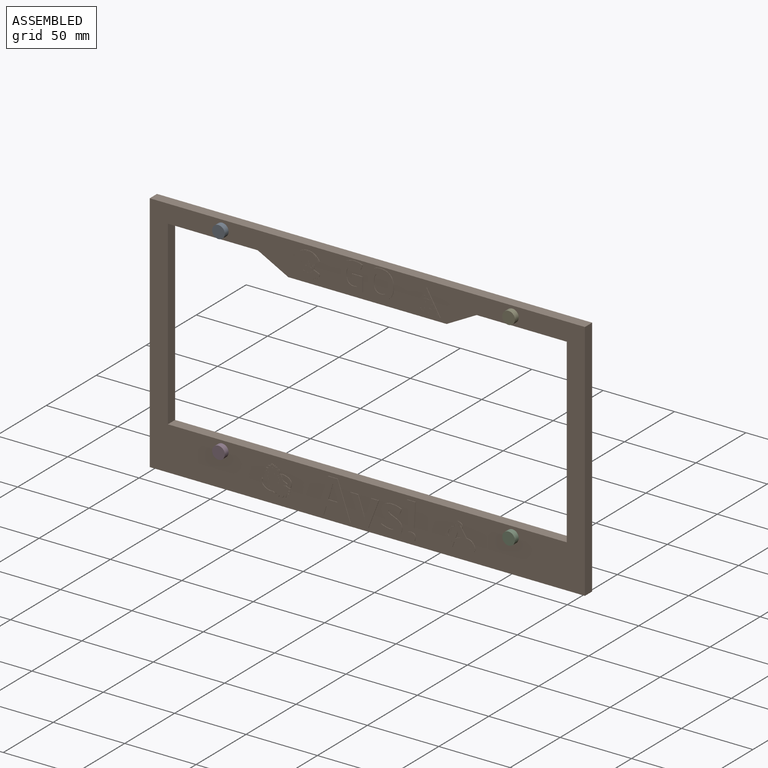
[diagram: assembled view]
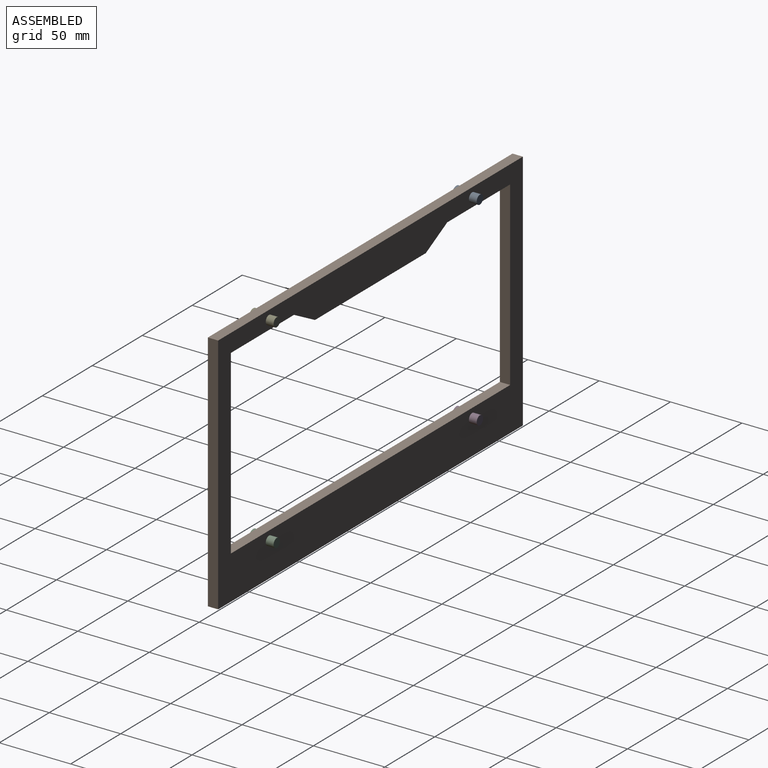
[diagram: assembled view, second angle]
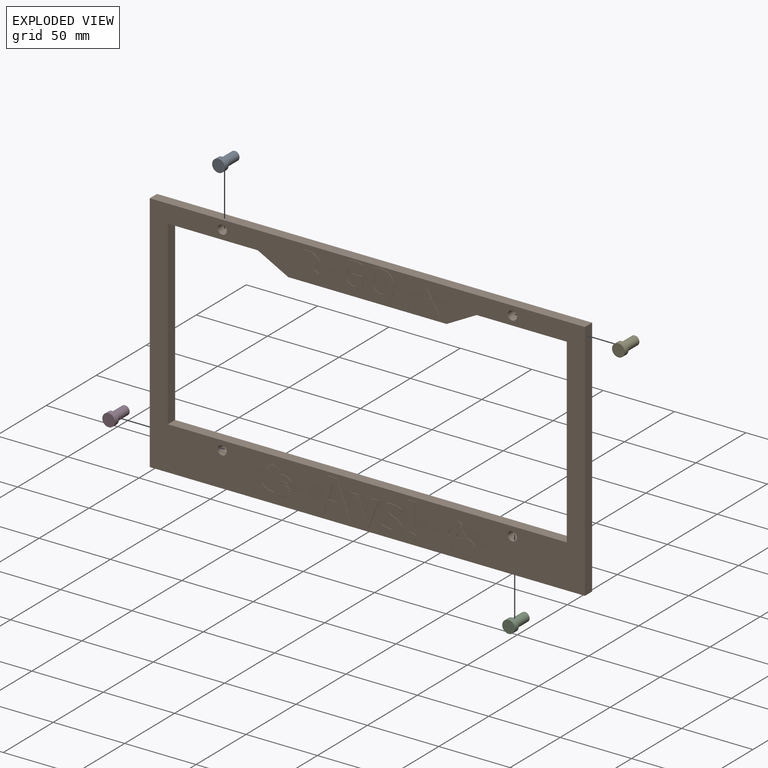
[diagram: exploded view]
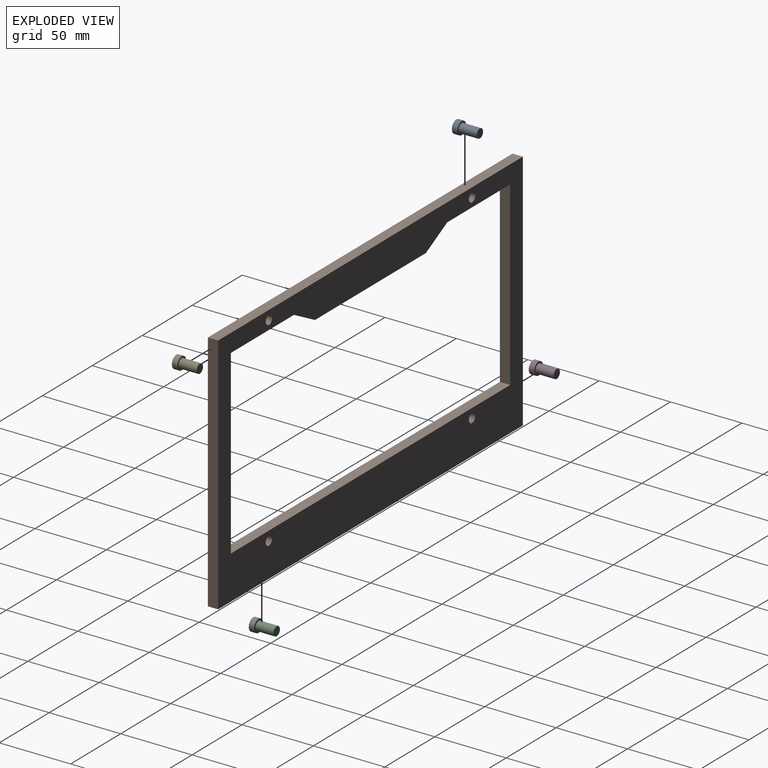
[diagram: exploded view, second angle]
ASSEMBLY  parts=5 mates=4
PART A: 5 faces, bbox 8.9x8.9x16.5 mm
  f0: cylinder r=3.17mm len=12.7mm, axis (0,0,-1), area 253.4mm2, adj f1,f4
  f1: plane 6.35x6.35mm, normal (0,0,-1), area 31.7mm2, adj f0
  f2: cylinder r=4.45mm len=8.89mm, axis (0,0,-1), area 106.4mm2, adj f3,f4
  f3: plane 8.89x8.89mm, normal (0,0,1), area 62.1mm2, adj f2
  f4: plane 8.89x8.89mm, normal (0,0,-1), area 30.4mm2, adj f0,f2
PART B: 225 faces, bbox 304.8x7.5x170.2 mm
  f0: plane 304.8x170.18mm, normal (0,-1,0), area 15362.3mm2, adj f3,f5,f6,f9,f13,f14,f15,f16
  f1: plane 19.3x16.68mm, normal (0,-1,0), area 78.7mm2, adj f168,f169,f170,f171,f172,f173,f174,f175
  f2: plane 6.69x4.43mm, normal (0,-1,0), area 7.1mm2, adj f4,f139
  f3: plane 5.13x3.13mm, normal (-0.85,0,0.52), area 1.4mm2, adj f0,f11,f134,f139
  f4: plane 6.49x3.96mm, normal (-0.85,0,0.52), area 1.7mm2, adj f2,f10,f139
  f5: plane 4.17x2.55mm, normal (-0.85,0,0.52), area 1.1mm2, adj f0,f10,f13,f139
  f6: plane 3.63x1.32mm, normal (0.94,0,-0.34), area 0.9mm2, adj f0,f11,f134,f139
  f7: plane 4.25x1.54mm, normal (0.94,0,-0.34), area 1mm2, adj f8,f10,f12,f139
  f8: plane 3.22x1.12mm, normal (-0.94,0,-0.33), area 0.8mm2, adj f7,f10,f12,f139
  f9: plane 0.37x0.23mm, normal (0.91,0,0.42), area 0.1mm2, adj f0,f10,f135,f139
  f10: plane 12.59x12.14mm, normal (0,-1,0), area 63.2mm2, adj f4,f5,f7,f8,f9,f13,f133,f135
  f11: plane 8.79x5.2mm, normal (0,-1,0), area 25.5mm2, adj f3,f6,f134,f139
  f12: plane 4.25x2.67mm, normal (0,-1,0), area 4.9mm2, adj f7,f8,f139
  f13: plane 0.38x0.25mm, normal (0.84,0,0.55), area 0.1mm2, adj f0,f5,f10,f137
  f14: plane 63.13x7.24mm, normal (0,0,-1), area 457mm2, adj f0,f15,f25,f26
  f15: plane 127x7.24mm, normal (-1,0,0), area 919.4mm2, adj f0,f14,f16,f26
  f16: plane 279.4x7.24mm, normal (0,0,1), area 2022.6mm2, adj f0,f15,f17,f26
  f17: plane 127x7.24mm, normal (1,0,0), area 919.4mm2, adj f0,f16,f18,f26
  f18: plane 62.95x7.24mm, normal (0,0,-1), area 455.7mm2, adj f0,f17,f19,f26
  f19: plane 21.4x11.28mm, normal (-0.47,0,-0.88), area 175.1mm2, adj f0,f18,f20,f26
  f20: plane 110.9x7.24mm, normal (0,0,-1), area 802.8mm2, adj f0,f19,f25,f26
  f21: plane 170.18x7.24mm, normal (1,0,0), area 1231.9mm2, adj f0,f22,f24,f26
  f22: plane 304.8x7.24mm, normal (0,0,1), area 2206.4mm2, adj f0,f21,f23,f26
  f23: plane 170.18x7.24mm, normal (-1,0,0), area 1231.9mm2, adj f0,f22,f24,f26
  f24: plane 304.8x7.24mm, normal (0,0,-1), area 2206.4mm2, adj f0,f21,f23,f26
  f25: plane 21.03x11.28mm, normal (0.47,0,-0.88), area 172.7mm2, adj f0,f14,f20,f26
  f26: plane 304.8x170.18mm, normal (0,1,0), area 17750.9mm2, adj f14,f15,f16,f17,f18,f19,f20,f21
  f27: cylinder r=3.17mm len=7.24mm, axis (0,-1,0), area 144.4mm2, adj f0,f26
  f28: cylinder r=3.17mm len=7.24mm, axis (0,-1,0), area 144.4mm2, adj f0,f26
  f29: cylinder r=3.17mm len=7.24mm, axis (0,-1,0), area 144.4mm2, adj f0,f26
  f30: cylinder r=3.17mm len=7.24mm, axis (0,-1,0), area 144.4mm2, adj f0,f26
  f31: plane 7.5x0.25mm, normal (0,0,1), area 1.9mm2, adj f0,f32,f49,f50
  f32: plane 3.34x0.25mm, normal (-1,0,0), area 0.8mm2, adj f0,f31,f33,f50
  f33: plane 3.58x0.25mm, normal (0,0,-1), area 0.9mm2, adj f0,f32,f34,f50
  f34: plane 3.94x0.25mm, normal (-1,0,0), area 1mm2, adj f0,f33,f35,f50
  f35: extruded ~2.55x0.26mm, area 0.7mm2, adj f0,f34,f36,f50
  f36: extruded ~3.66x1.62mm, area 1.1mm2, adj f0,f35,f37,f50
  f37: extruded ~4.7x1.26mm, area 1.3mm2, adj f0,f36,f38,f50
  f38: extruded ~4.69x1.56mm, area 1.3mm2, adj f0,f37,f39,f50
  f39: extruded ~4.16x1.74mm, area 1.2mm2, adj f0,f38,f40,f50
  f40: extruded ~4.3x1.03mm, area 1.1mm2, adj f0,f39,f41,f50
  f41: plane 3.2x1.33mm, normal (0.92,0,-0.38), area 0.9mm2, adj f0,f40,f42,f50
  f42: extruded ~5.61x1.16mm, area 1.5mm2, adj f0,f41,f43,f50
  f43: extruded ~7.25x2.56mm, area 2mm2, adj f0,f42,f44,f50
  f44: extruded ~7.13x2.62mm, area 2mm2, adj f0,f43,f45,f50
  f45: extruded ~7.22x2.26mm, area 2mm2, adj f0,f44,f46,f50
  f46: extruded ~6.53x2.51mm, area 1.8mm2, adj f0,f45,f47,f50
  f47: extruded ~3.29x0.25mm, area 0.8mm2, adj f0,f46,f48,f50
  f48: extruded ~3.43x0.84mm, area 0.9mm2, adj f0,f47,f49,f50
  f49: plane 9.79x0.25mm, normal (1,0,0), area 2.5mm2, adj f0,f31,f48,f50
  f50: plane 19.42x15.5mm, normal (0,-1,0), area 173.8mm2, adj f31,f32,f33,f34,f35,f36,f37,f38
  f51: extruded ~4.77x1.2mm, area 1.3mm2, adj f52,f64,f65,f66
  f52: extruded ~4.77x1.21mm, area 1.3mm2, adj f51,f53,f65,f66
  f53: extruded ~3.6x1.61mm, area 1mm2, adj f52,f54,f65,f66
  f54: extruded ~6.38x4.77mm, area 2.3mm2, adj f53,f55,f65,f66
  f55: extruded ~6.37x4.79mm, area 2.3mm2, adj f54,f64,f65,f66
  f56: extruded ~7.21x2.33mm, area 2mm2, adj f0,f57,f63,f65
  f57: extruded ~7.21x2.31mm, area 2mm2, adj f0,f56,f58,f65
  f58: extruded ~6.66x2.51mm, area 1.9mm2, adj f0,f57,f59,f65
  f59: extruded ~6.69x2.49mm, area 1.9mm2, adj f0,f58,f60,f65
  f60: extruded ~7.2x2.33mm, area 2mm2, adj f0,f59,f61,f65
  f61: extruded ~7.24x2.33mm, area 2mm2, adj f0,f60,f62,f65
  f62: extruded ~6.67x2.52mm, area 1.9mm2, adj f0,f61,f63,f65
  f63: extruded ~6.67x2.52mm, area 1.9mm2, adj f0,f56,f62,f65
  f64: extruded ~3.59x1.6mm, area 1mm2, adj f51,f55,f65,f66
  f65: plane 19.45x17.98mm, normal (0,-1,0), area 186.8mm2, adj f51,f52,f53,f54,f55,f56,f57,f58
  f66: plane 12.75x9.58mm, normal (0,-1,0), area 101.7mm2, adj f51,f52,f53,f54,f55,f64
  f67: extruded ~9.22x2.85mm, area 2.5mm2, adj f68,f78,f79,f80
  f68: plane 6.56x0.25mm, normal (0,0,1), area 1.7mm2, adj f67,f69,f79,f80
  f69: extruded ~10.9x3.25mm, area 2.9mm2, adj f68,f78,f79,f80
  f70: plane 6x1.82mm, normal (-0.96,0,-0.29), area 1.6mm2, adj f0,f71,f77,f79
  f71: plane 5.75x0.25mm, normal (0,0,-1), area 1.5mm2, adj f0,f70,f72,f79
  f72: plane 25.29x8.92mm, normal (0.94,0,0.33), area 6.8mm2, adj f0,f71,f73,f79
  f73: plane 6.53x0.25mm, normal (0,0,1), area 1.7mm2, adj f0,f72,f74,f79
  f74: plane 25.29x8.89mm, normal (-0.94,0,0.33), area 6.8mm2, adj f0,f73,f75,f79
  f75: plane 5.75x0.25mm, normal (0,0,-1), area 1.5mm2, adj f0,f74,f76,f79
  f76: plane 6x1.82mm, normal (0.96,0,-0.29), area 1.6mm2, adj f0,f75,f77,f79
  f77: plane 9.18x0.25mm, normal (0,0,-1), area 2.3mm2, adj f0,f70,f76,f79
  f78: extruded ~1.69x0.46mm, area 0.4mm2, adj f67,f69,f79,f80
  f79: plane 25.29x24.34mm, normal (0,-1,0), area 289.2mm2, adj f67,f68,f69,f70,f71,f72,f73,f74
  f80: plane 10.9x6.56mm, normal (0,-1,0), area 35.1mm2, adj f67,f68,f69,f78
  f81: plane 19.26x7.34mm, normal (-0.93,0,-0.36), area 5.2mm2, adj f0,f82,f90,f91
  f82: plane 5.39x0.25mm, normal (0,0,-1), area 1.4mm2, adj f0,f81,f83,f91
  f83: plane 19.26x7.34mm, normal (0.93,0,-0.36), area 5.2mm2, adj f0,f82,f84,f91
  f84: plane 5.5x0.25mm, normal (0,0,1), area 1.4mm2, adj f0,f83,f85,f91
  f85: plane 10.97x3.7mm, normal (-0.95,0,0.32), area 2.9mm2, adj f0,f84,f86,f91
  f86: extruded ~3.94x0.78mm, area 1mm2, adj f0,f85,f87,f91
  f87: plane 0.25x0.1mm, normal (0,0,1), area 0mm2, adj f0,f86,f88,f91
  f88: extruded ~3.94x0.78mm, area 1mm2, adj f0,f87,f89,f91
  f89: plane 10.97x3.72mm, normal (0.95,0,0.32), area 2.9mm2, adj f0,f88,f90,f91
  f90: plane 5.5x0.25mm, normal (0,0,1), area 1.4mm2, adj f0,f81,f89,f91
  f91: plane 20.07x19.26mm, normal (0,-1,0), area 183.4mm2, adj f81,f82,f83,f84,f85,f86,f87,f88
  f92: extruded ~4.52x2.06mm, area 1.3mm2, adj f0,f93,f117,f118
  f93: extruded ~2.46x0.5mm, area 0.6mm2, adj f0,f92,f94,f118
  f94: extruded ~1.82x1.55mm, area 0.6mm2, adj f0,f93,f95,f118
  f95: extruded ~3.3x1.71mm, area 0.9mm2, adj f0,f94,f96,f118
  f96: extruded ~3.29x1.53mm, area 0.9mm2, adj f0,f95,f97,f118
  f97: extruded ~1.22x0.75mm, area 0.4mm2, adj f0,f96,f98,f118
  f98: extruded ~2.33x1.26mm, area 0.8mm2, adj f0,f97,f99,f118
  f99: extruded ~2.57x0.4mm, area 0.7mm2, adj f0,f98,f100,f118
  f100: extruded ~2.71x1.01mm, area 0.7mm2, adj f0,f99,f101,f118
  f101: plane 3.79x1.58mm, normal (0.92,0,-0.39), area 1mm2, adj f0,f100,f102,f118
  f102: extruded ~6.77x1.52mm, area 1.8mm2, adj f0,f101,f103,f118
  f103: extruded ~5.64x1.4mm, area 1.5mm2, adj f0,f102,f104,f118
  f104: extruded ~3.97x1.99mm, area 1.2mm2, adj f0,f103,f105,f118
  f105: extruded ~2.52x0.47mm, area 0.7mm2, adj f0,f104,f106,f118
  f106: extruded ~1.82x1.52mm, area 0.6mm2, adj f0,f105,f107,f118
  f107: extruded ~3.27x1.73mm, area 0.9mm2, adj f0,f106,f108,f118
  f108: extruded ~2.48x1.14mm, area 0.7mm2, adj f0,f107,f109,f118
  f109: extruded ~1.31x0.88mm, area 0.4mm2, adj f0,f108,f110,f118
  f110: extruded ~1.01x0.38mm, area 0.3mm2, adj f0,f109,f111,f118
  f111: extruded ~2.86x1.65mm, area 0.9mm2, adj f0,f110,f112,f118
  f112: extruded ~3.23x0.47mm, area 0.8mm2, adj f0,f111,f113,f118
  f113: extruded ~3.3x1.15mm, area 0.9mm2, adj f0,f112,f114,f118
  f114: plane 4.34x0.25mm, normal (-1,0,0), area 1.1mm2, adj f0,f113,f115,f118
  f115: extruded ~2.77x0.84mm, area 0.7mm2, adj f0,f114,f116,f118
  f116: extruded ~3.58x0.29mm, area 0.9mm2, adj f0,f115,f117,f118
  f117: extruded ~6.16x1.55mm, area 1.6mm2, adj f0,f92,f116,f118
  f118: plane 19.97x14.61mm, normal (0,-1,0), area 185.8mm2, adj f92,f93,f94,f95,f96,f97,f98,f99
  f119: plane 4.2x0.25mm, normal (0,0,-1), area 1.1mm2, adj f0,f120,f122,f123
  f120: plane 16.83x0.88mm, normal (1,0,-0.05), area 4.3mm2, adj f0,f119,f121,f123
  f121: plane 5.96x0.25mm, normal (0,0,1), area 1.5mm2, adj f0,f120,f122,f123
  f122: plane 16.83x0.88mm, normal (-1,0,-0.05), area 4.3mm2, adj f0,f119,f121,f123
  f123: plane 16.83x5.96mm, normal (0,-1,0), area 85.5mm2, adj f119,f120,f121,f122
  f124: extruded ~2.19x0.77mm, area 0.6mm2, adj f0,f125,f131,f132
  f125: extruded ~2.16x0.79mm, area 0.6mm2, adj f0,f124,f126,f132
  f126: extruded ~2.24x0.77mm, area 0.6mm2, adj f0,f125,f127,f132
  f127: extruded ~2.2x0.78mm, area 0.6mm2, adj f0,f126,f128,f132
  f128: extruded ~2.14x0.79mm, area 0.6mm2, adj f0,f127,f129,f132
  f129: extruded ~2.17x0.78mm, area 0.6mm2, adj f0,f128,f130,f132
  f130: extruded ~2.21x0.76mm, area 0.6mm2, adj f0,f129,f131,f132
  f131: extruded ~2.26x0.74mm, area 0.6mm2, adj f0,f124,f130,f132
  f132: plane 6.02x5.85mm, normal (0,-1,0), area 29mm2, adj f124,f125,f126,f127,f128,f129,f130,f131
  f133: plane 0.73x0.48mm, normal (0.84,0,0.55), area 0.2mm2, adj f0,f10,f136,f137
  f134: plane 7.4x0.64mm, normal (0.09,0,-1), area 1.7mm2, adj f0,f3,f6,f11
  f135: plane 2.74x1.73mm, normal (0.85,0,0.53), area 0.7mm2, adj f0,f9,f10,f136
  f136: plane 2.98x1.88mm, normal (0.85,0,0.53), area 0.8mm2, adj f0,f10,f133,f135
  f137: extruded ~5.63x4.08mm, area 2.4mm2, adj f0,f10,f13,f133,f138
  f138: plane 5.74x4.24mm, normal (0,-1,0), area 9.5mm2, adj f137
  f139: extruded ~20.72x12.4mm, area 11.9mm2, adj f0,f2,f3,f4,f5,f6,f7,f8
  f140: plane 21.02x12.62mm, normal (0,-1,0), area 65.7mm2, adj f139
  f141: plane 1.32x0.62mm, normal (0,-1,0), area 0mm2, adj f139,f142
  f142: extruded ~1.28x0.58mm, area 0.3mm2, adj f0,f139,f141
  f143: plane 1.23x0.09mm, normal (0,-1,0), area 0mm2, adj f139,f144
  f144: extruded ~1.18x0.23mm, area 0.3mm2, adj f0,f139,f143
  f145: extruded ~8.35x3.12mm, area 2.4mm2, adj f0,f139,f146,f147
  f146: extruded ~3.09x1.01mm, area 0.8mm2, adj f0,f139,f145,f147
  f147: plane 8.75x5.99mm, normal (0,-1,0), area 28.9mm2, adj f139,f145,f146
  f148: plane 20.29x19.38mm, normal (0,-1,0), area 142.5mm2, adj f149,f151,f153,f155,f157
  f149: extruded ~19.18x18.58mm, area 18.7mm2, adj f0,f148
  f150: plane 1.72x1.3mm, normal (0,-1,0), area 1.7mm2, adj f151
  f151: extruded ~1.67x1.26mm, area 0.1mm2, adj f148,f150
  f152: plane 2.15x1.79mm, normal (0,-1,0), area 2.7mm2, adj f153
  f153: extruded ~2.1x1.76mm, area 0.2mm2, adj f148,f152
  f154: plane 15.11x12.5mm, normal (0,-1,0), area 93.2mm2, adj f155,f158
  f155: extruded ~14.96x12.24mm, area 1.3mm2, adj f148,f154
  f156: plane 1.78x1.25mm, normal (0,-1,0), area 1.5mm2, adj f157
  f157: extruded ~1.72x1.19mm, area 0.1mm2, adj f148,f156
  f158: extruded ~3.12x3.1mm, area 0.3mm2, adj f154,f159
  f159: plane 3.26x3.22mm, normal (0,-1,0), area 2.6mm2, adj f158
  f160: plane 0.86x0.45mm, normal (0.89,0,0.46), area 0.2mm2, adj f0,f161,f162
  f161: extruded ~9.64x7.98mm, area 7.2mm2, adj f0,f160,f162
  f162: plane 9.86x8.08mm, normal (0,-1,0), area 16.7mm2, adj f160,f161
  f163: plane 1.02x0.57mm, normal (-0.87,0,-0.49), area 0.3mm2, adj f0,f164,f166,f167
  f164: extruded ~6.13x5.28mm, area 2.4mm2, adj f0,f163,f165,f167
  f165: plane 0.67x0.25mm, normal (0,0,-1), area 0.2mm2, adj f0,f164,f166,f167
  f166: extruded ~7.18x7.15mm, area 3.1mm2, adj f0,f163,f165,f167
  f167: plane 7.22x7.18mm, normal (0,-1,0), area 13.7mm2, adj f163,f164,f165,f166
  f168: plane 16.68x9.61mm, normal (0.87,0,0.5), area 4.4mm2, adj f0,f1,f169,f170
  f169: plane 16.68x9.69mm, normal (-0.86,0,0.5), area 4.4mm2, adj f0,f1,f168,f170
  f170: plane 19.3x0.23mm, normal (0,0,-1), area 4.4mm2, adj f0,f1,f168,f169
  f171: plane 0.68x0.45mm, normal (0.84,0,0.55), area 0mm2, adj f1,f172,f177,f178
  f172: plane 2.6x1.59mm, normal (-0.85,0,0.52), area 0.1mm2, adj f1,f171,f173,f178
  f173: extruded ~6.34x1.31mm, area 0.2mm2, adj f1,f172,f174,f178
  f174: plane 3.82x2.27mm, normal (0.86,0,0.51), area 0.1mm2, adj f1,f173,f175,f178
  f175: plane 0.69x0.46mm, normal (-0.83,0,0.56), area 0mm2, adj f1,f174,f176,f178
  f176: plane 0.89x0.59mm, normal (0.83,0,0.55), area 0mm2, adj f1,f175,f177,f178
  f177: plane 1.82x0.98mm, normal (-0.88,0,0.48), area 0.1mm2, adj f1,f171,f176,f178
  f178: plane 6.34x4.02mm, normal (0,-1,0), area 8.9mm2, adj f171,f172,f173,f174,f175,f176,f177
  f179: extruded ~5.22x2.94mm, area 0.2mm2, adj f1,f180,f181,f182
  f180: plane 5.22x3mm, normal (-0.87,0,0.5), area 0.2mm2, adj f1,f179,f181,f182
  f181: plane 5.94x0.03mm, normal (0,0,-1), area 0.2mm2, adj f1,f179,f180,f182
  f182: plane 5.94x5.22mm, normal (0,-1,0), area 11.3mm2, adj f179,f180,f181
  f183: plane 6.2x0.03mm, normal (0,0,-1), area 0.2mm2, adj f1,f184,f188,f189
  f184: plane 5.97x3.44mm, normal (0.87,0,0.5), area 0.2mm2, adj f1,f183,f185,f189
  f185: plane 1.97x0.74mm, normal (-0.35,0,0.94), area 0.1mm2, adj f1,f184,f186,f189
  f186: extruded ~1.61x0.25mm, area 0mm2, adj f1,f185,f187,f189
  f187: plane 2.04x0.77mm, normal (-0.35,0,-0.94), area 0.1mm2, adj f1,f186,f188,f189
  f188: extruded ~2.85x2.81mm, area 0.1mm2, adj f1,f183,f187,f189
  f189: plane 6.2x5.97mm, normal (0,-1,0), area 17.1mm2, adj f183,f184,f185,f186,f187,f188
  f190: extruded ~4.02x3.91mm, area 0.3mm2, adj f1,f191
  f191: plane 4.06x3.96mm, normal (0,-1,0), area 12.4mm2, adj f190
  f192: extruded ~4.83x4.52mm, area 0.3mm2, adj f1,f193,f195,f196
  f193: plane 1.7x0.58mm, normal (0.32,0,-0.95), area 0mm2, adj f1,f192,f194,f196
  f194: extruded ~8.48x8.06mm, area 0.6mm2, adj f1,f193,f195,f196
  f195: plane 1.74x0.6mm, normal (0.32,0,0.95), area 0mm2, adj f1,f192,f194,f196
  f196: plane 8.58x8.1mm, normal (0,-1,0), area 32.7mm2, adj f192,f193,f194,f195
  f197: plane 4.06x1.79mm, normal (0.4,0,-0.92), area 1mm2, adj f0,f198,f200,f201
  f198: extruded ~18.72x17.91mm, area 11.9mm2, adj f0,f197,f199,f201
  f199: plane 3.99x1.72mm, normal (0.4,0,0.92), area 1mm2, adj f0,f198,f200,f201
  f200: extruded ~3.57x0.35mm, area 0.8mm2, adj f0,f197,f199,f201
  f201: plane 18.86x18.1mm, normal (0,-1,0), area 64.5mm2, adj f197,f198,f199,f200,f202,f203,f204,f205
  f202: extruded ~9.24x8.65mm, area 0.6mm2, adj f201,f203,f205,f206
  f203: plane 3.9x1.69mm, normal (0.4,0,-0.92), area 0.1mm2, adj f201,f202,f204,f206
  f204: extruded ~17.57x16.88mm, area 1.2mm2, adj f201,f203,f205,f206
  f205: plane 3.95x1.66mm, normal (0.39,0,0.92), area 0.1mm2, adj f201,f202,f204,f206
  f206: plane 17.66x16.93mm, normal (0,-1,0), area 151.6mm2, adj f202,f203,f204,f205
  f207: plane 1.75x1.74mm, normal (0.71,0,0.71), area 0.1mm2, adj f201,f208,f213,f214
  f208: plane 1.76x1.75mm, normal (-0.71,0,0.71), area 0.1mm2, adj f201,f207,f209,f214
  f209: plane 0.66x0.65mm, normal (0.71,0,0.71), area 0mm2, adj f201,f208,f210,f214
  f210: plane 1.62x1.61mm, normal (-0.71,0,0.71), area 0.1mm2, adj f201,f209,f211,f214
  f211: extruded ~7.94x4.34mm, area 0.3mm2, adj f201,f210,f212,f214
  f212: plane 1.57x1.56mm, normal (0.71,0,0.71), area 0.1mm2, adj f201,f211,f213,f214
  f213: plane 0.55x0.55mm, normal (-0.71,0,0.71), area 0mm2, adj f201,f207,f212,f214
  f214: plane 7.99x7.1mm, normal (0,-1,0), area 33.7mm2, adj f207,f208,f209,f210,f211,f212,f213,f215
  f215: plane 4x1.37mm, normal (0.95,0,0.32), area 0.1mm2, adj f214,f216,f218,f219
  f216: plane 1.09x0.29mm, normal (-0.97,0,0.25), area 0mm2, adj f214,f215,f217,f219
  f217: plane 1.32x0.53mm, normal (0.37,0,0.93), area 0mm2, adj f214,f216,f218,f219
  f218: plane 3.45x2.97mm, normal (-0.76,0,-0.65), area 0.1mm2, adj f214,f215,f217,f219
  f219: plane 4x2.97mm, normal (0,-1,0), area 2.8mm2, adj f215,f216,f217,f218
  f220: plane 0.7x0.38mm, normal (-0.88,0,0.48), area 0mm2, adj f214,f221,f223,f224
  f221: plane 0.73x0.15mm, normal (0.2,0,0.98), area 0mm2, adj f214,f220,f222,f224
  f222: plane 1.73x1.72mm, normal (-0.7,0,-0.71), area 0.1mm2, adj f214,f221,f223,f224
  f223: plane 2.27x0.62mm, normal (0.96,0,0.26), area 0.1mm2, adj f214,f220,f222,f224
  f224: plane 2.27x1.73mm, normal (0,-1,0), area 1.1mm2, adj f220,f221,f222,f223
PART C: same geometry as A
PART D: same geometry as A
PART E: same geometry as A
PLACE A rot(axis=(1,0,0),90deg) t=(-101.6,5.46,69.85)mm
PLACE B at identity fixed
PLACE C rot(axis=(1,0,0),90deg) t=(101.6,5.46,-69.85)mm
PLACE D rot(axis=(1,0,0),90deg) t=(-101.6,5.46,-69.85)mm
PLACE E rot(axis=(1,0,0),90deg) t=(101.6,5.46,69.85)mm
MATE fastened A.f0 <-> B.f27  axis (0,1,0) through (-101.6,-7.24,69.85)mm
MATE fastened D.f2 <-> B.f30  axis (0,1,0) through (-101.6,-7.24,-69.85)mm
MATE fastened C.f2 <-> B.f29  axis (0,1,0) through (101.6,-7.24,-69.85)mm
MATE fastened E.f0 <-> B.f28  axis (0,1,0) through (101.6,-7.24,69.85)mm
